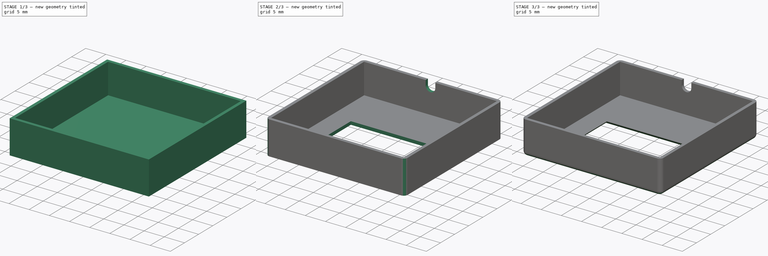
[diagram: build sequence overview — one tinted view per stage of 3, left to right]
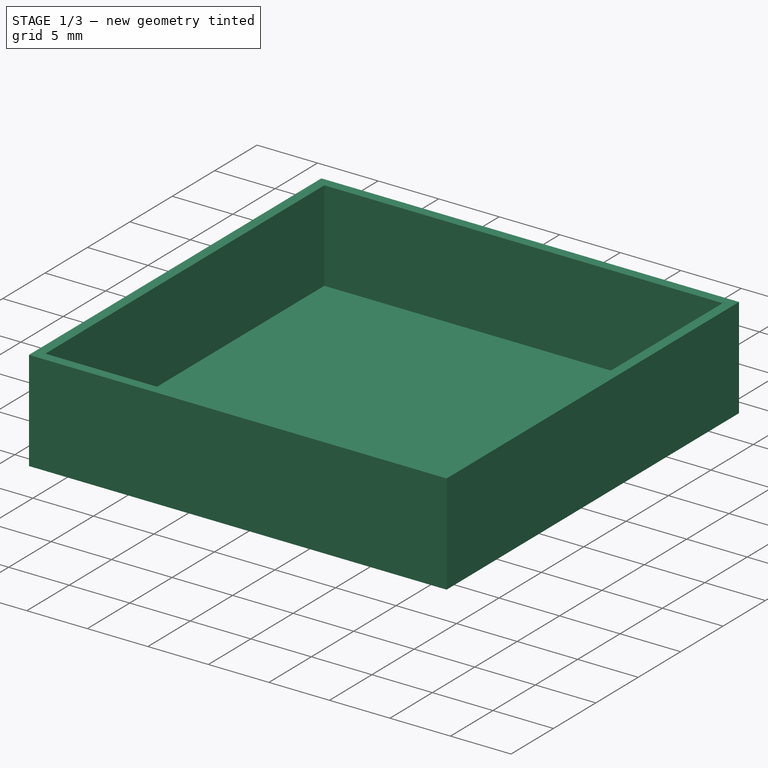
[diagram: stage 1 of 3 — iso view after this stage's code; geometry added in this stage tinted green]
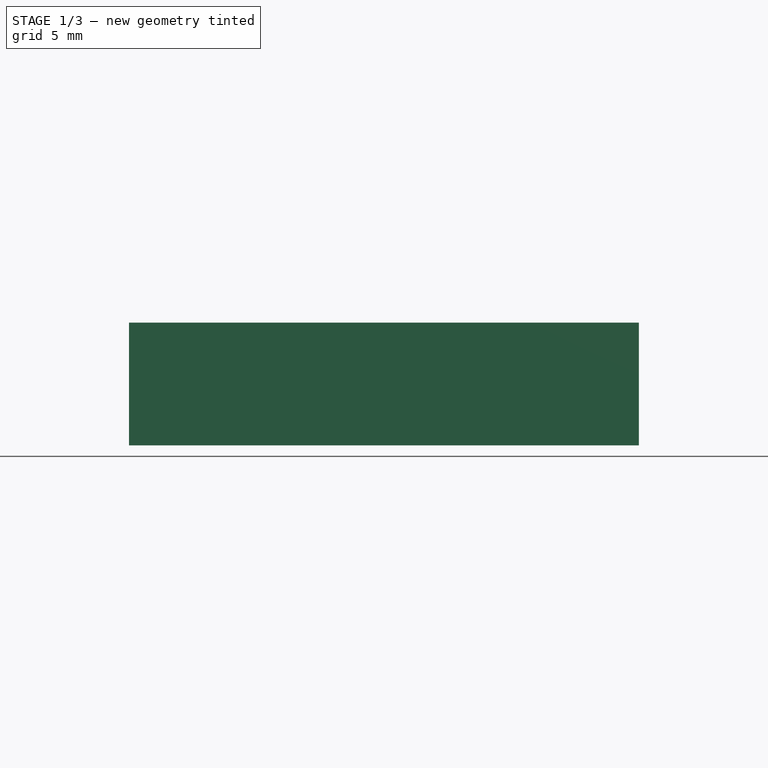
[diagram: stage 1 of 3 — front view after this stage's code; geometry added in this stage tinted green]
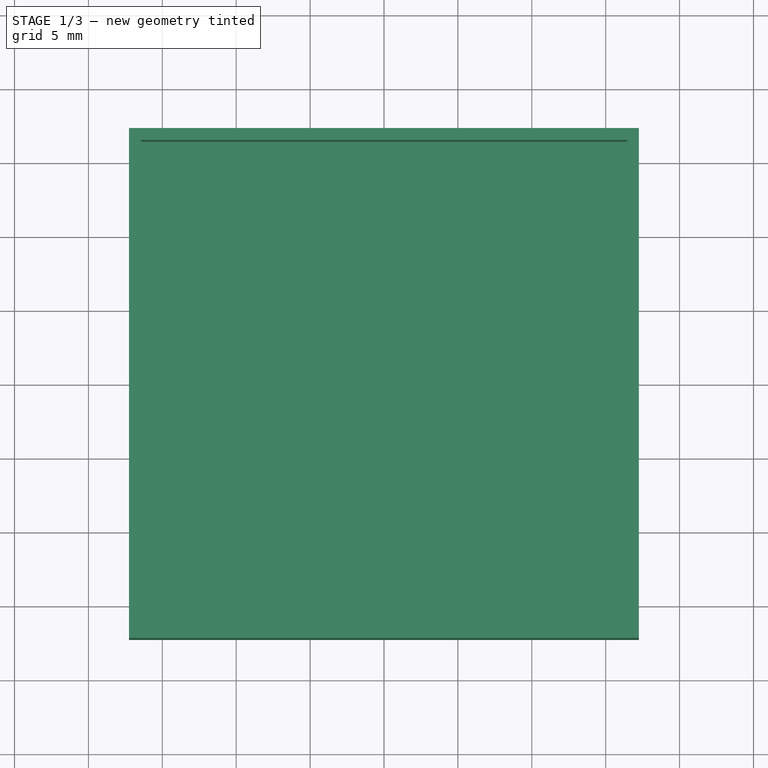
[diagram: stage 1 of 3 — top view after this stage's code; geometry added in this stage tinted green]
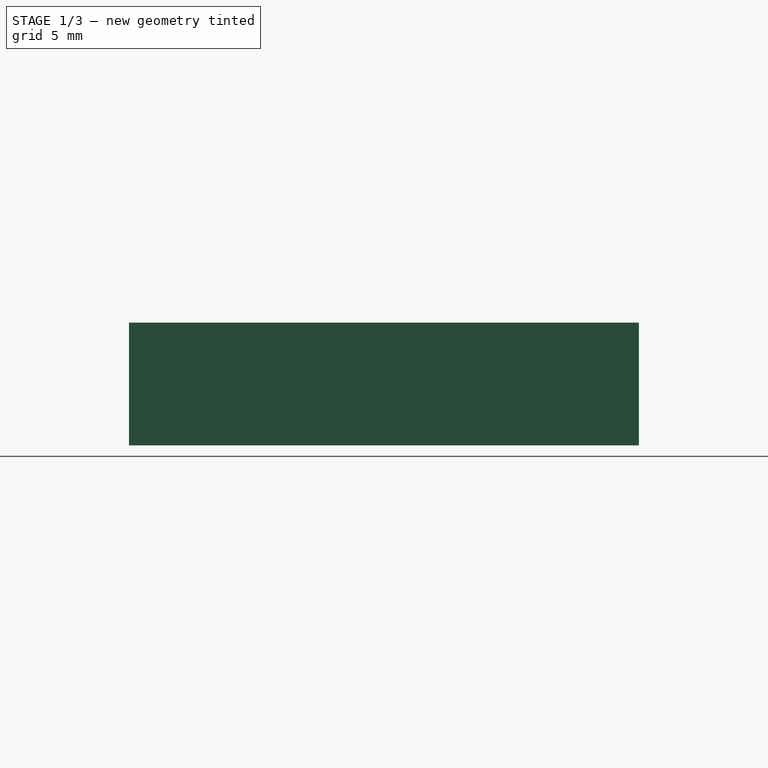
[diagram: stage 1 of 3 — right view after this stage's code; geometry added in this stage tinted green]
FCSTD DOCUMENT  (FreeCAD 0.20R29603 (Git))
Label: 128x64_gornja_soldered
License: All rights reserved
LicenseURL: http://en.wikipedia.org/wiki/All_rights_reserved
objects: Sketcher::SketchObject×4, PartDesign::Pad×2, PartDesign::Pocket×2, PartDesign::Fillet×2, PartDesign::Chamfer×1, PartDesign::Body×1
note: 19 computed .brp shape members not serialized (recipe doc carries the construction recipe); baked Part::Feature solids carry a one-line shape summary decoded from their .brp

FEATURE [Sketcher::SketchObject] Sketch
  FullyConstrained = true
  MapMode = 5
  Support = -> [XY_Plane]
  sketch-geometry (8):
    g0: LineSegment StartX=-16.45 StartY=16.45 StartZ=0 EndX=16.45 EndY=16.45 EndZ=0
    g1: LineSegment StartX=16.45 StartY=16.45 StartZ=0 EndX=16.45 EndY=-16.45 EndZ=0
    g2: LineSegment StartX=16.45 StartY=-16.45 StartZ=0 EndX=-16.45 EndY=-16.45 EndZ=0
    g3: LineSegment StartX=-16.45 StartY=-16.45 StartZ=0 EndX=-16.45 EndY=16.45 EndZ=0
    g4: LineSegment StartX=-17.25 StartY=17.25 StartZ=0 EndX=17.25 EndY=17.25 EndZ=0
    g5: LineSegment StartX=17.25 StartY=17.25 StartZ=0 EndX=17.25 EndY=-17.25 EndZ=0
    g6: LineSegment StartX=17.25 StartY=-17.25 StartZ=0 EndX=-17.25 EndY=-17.25 EndZ=0
    g7: LineSegment StartX=-17.25 StartY=-17.25 StartZ=0 EndX=-17.25 EndY=17.25 EndZ=0
  constraints (22):
    c: Coincident(g0,g1)
    c: Coincident(g1,g2)
    c: Coincident(g2,g3)
    c: Coincident(g3,g0)
    c: Horizontal(g0)
    c: Vertical(g3)
    c: DistanceX(g2,g2) = 32.9
    c: Symmetric(g2,g1,g-2)
    c: Symmetric(g1,g0,g-1)
    c: DistanceY(g1,g1) = 32.9
    c: Coincident(g4,g5)
    c: Coincident(g5,g6)
    c: Coincident(g6,g7)
    c: Coincident(g7,g4)
    c: Horizontal(g4)
    c: Vertical(g7)
    c: Symmetric(g6,g5,g-2)
    c: Symmetric(g5,g4,g-1)
    c: DistanceX(g6,g6) = 34.5
    c: DistanceY(g5,g5) = 34.5
    c: DistanceX(g6,g2) = 0.8
    c: DistanceY(g5,g1) = 0.8
FEATURE [PartDesign::Pad] Pad
  Direction = (0,0,1)
  Length = 7.5
  Length2 = 10
  Profile = -> Sketch
  ReferenceAxis = -> Sketch [N_Axis]
  Type = 0
FEATURE [Sketcher::SketchObject] Sketch001
  FullyConstrained = true
  MapMode = 5
  Placement = pos=(0,0,0) rot=(1,0,0;3.14159rad)
  Support = -> [Pad]
  sketch-geometry (4):
    g0: LineSegment StartX=-17.25 StartY=17.25 StartZ=0 EndX=17.25 EndY=17.25 EndZ=0
    g1: LineSegment StartX=17.25 StartY=17.25 StartZ=0 EndX=17.25 EndY=-17.25 EndZ=0
    g2: LineSegment StartX=17.25 StartY=-17.25 StartZ=0 EndX=-17.25 EndY=-17.25 EndZ=0
    g3: LineSegment StartX=-17.25 StartY=-17.25 StartZ=0 EndX=-17.25 EndY=17.25 EndZ=0
  constraints (10):
    c: Coincident(g0,g1)
    c: Coincident(g1,g2)
    c: Coincident(g2,g3)
    c: Coincident(g3,g0)
    c: Horizontal(g0)
    c: Vertical(g3)
    c: Symmetric(g2,g1,g-2)
    c: Symmetric(g0,g1,g-1)
    c: DistanceY(g1,g1) = 34.5
    c: DistanceX(g2,g2) = 34.5
FEATURE [PartDesign::Pad] Pad001
  BaseFeature = -> Pad
  Direction = (0,0,-1)
  Length = 0.8
  Length2 = 10
  Profile = -> Sketch001
  ReferenceAxis = -> Sketch001 [N_Axis]
  Type = 0
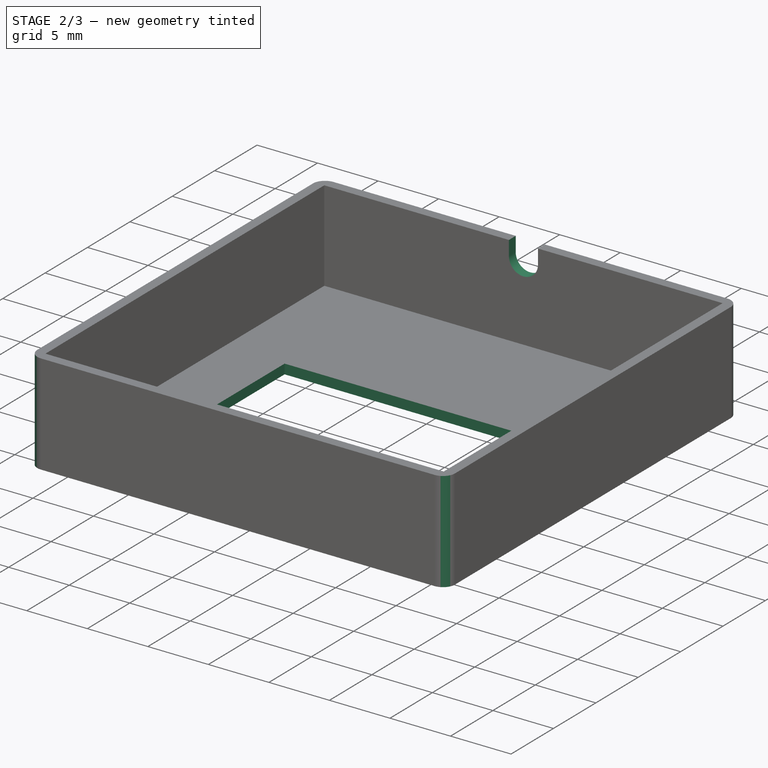
[diagram: stage 2 of 3 — iso view after this stage's code; geometry added in this stage tinted green]
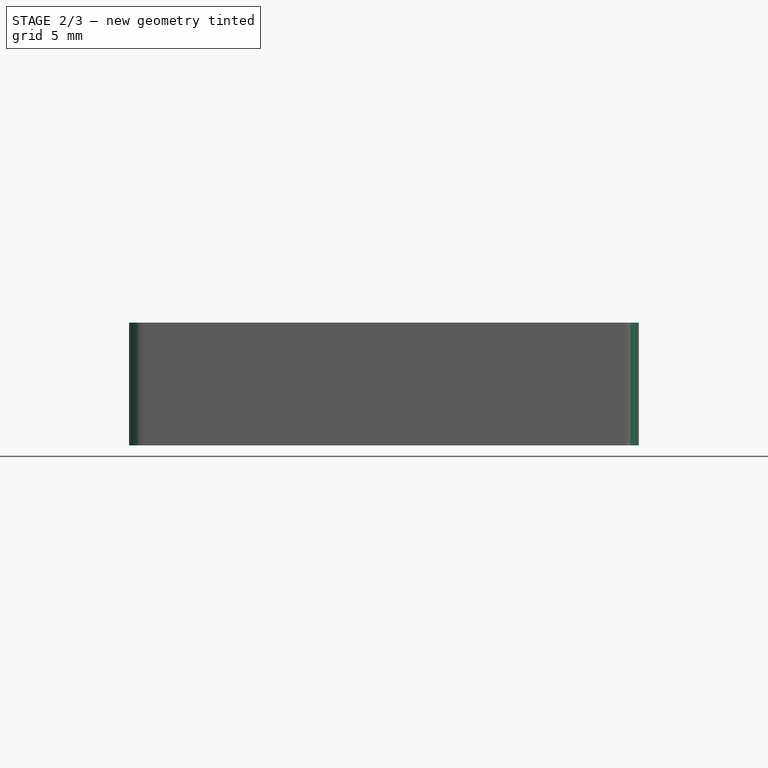
[diagram: stage 2 of 3 — front view after this stage's code; geometry added in this stage tinted green]
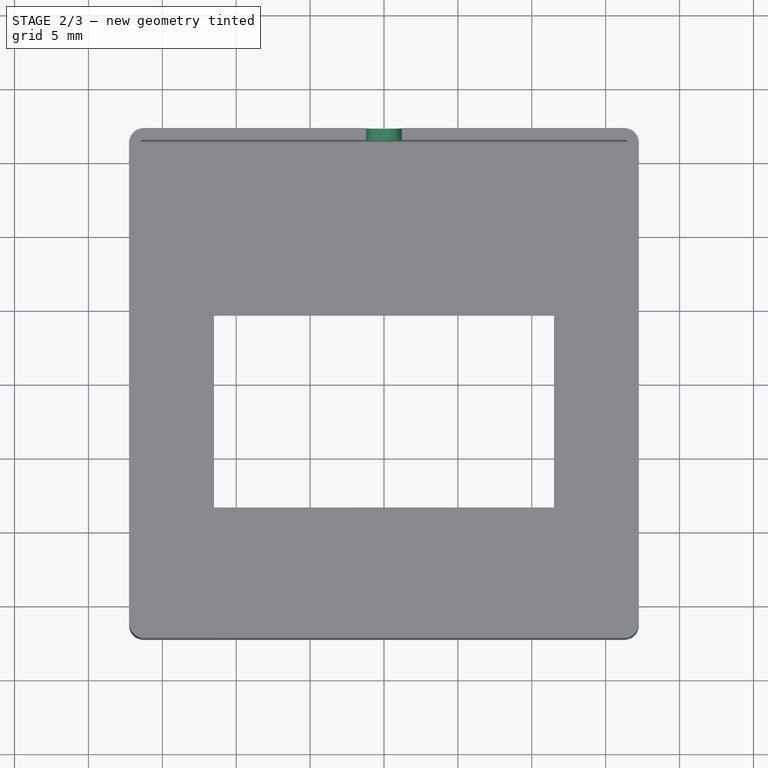
[diagram: stage 2 of 3 — top view after this stage's code; geometry added in this stage tinted green]
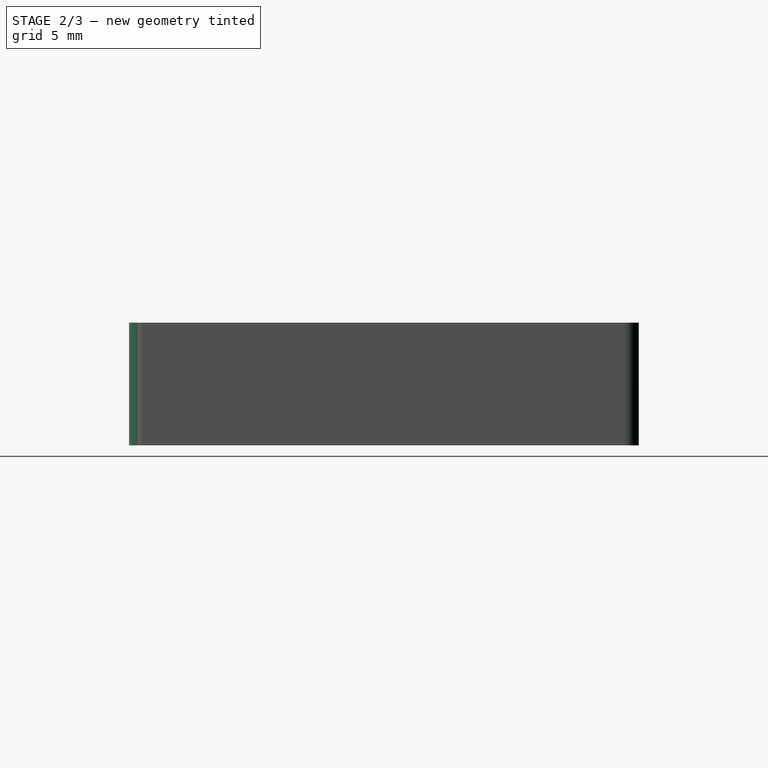
[diagram: stage 2 of 3 — right view after this stage's code; geometry added in this stage tinted green]
FEATURE [Sketcher::SketchObject] Sketch002
  ExternalGeometry = -> [Pad001]
  FullyConstrained = true
  MapMode = 5
  Placement = pos=(0,0,-0.8) rot=(1,0,0;3.14159rad)
  Support = -> [Pad001]
  sketch-geometry (4):
    g0: LineSegment StartX=-11.5 StartY=8.3 StartZ=0 EndX=11.5 EndY=8.3 EndZ=0
    g1: LineSegment StartX=11.5 StartY=8.3 StartZ=0 EndX=11.5 EndY=-4.7 EndZ=0
    g2: LineSegment StartX=11.5 StartY=-4.7 StartZ=0 EndX=-11.5 EndY=-4.7 EndZ=0
    g3: LineSegment StartX=-11.5 StartY=-4.7 StartZ=0 EndX=-11.5 EndY=8.3 EndZ=0
  constraints (12):
    c: Coincident(g0,g1)
    c: Coincident(g1,g2)
    c: Coincident(g2,g3)
    c: Coincident(g3,g0)
    c: Horizontal(g0)
    c: Vertical(g1)
    c: Vertical(g3)
    c: Symmetric(g2,g1,g-2)
    c: DistanceX(g2,g2) = 23
    c: DistanceY(g1,g1) = 13
    c: DistanceY(g-1,g0) = 8.3
    c: DistanceY(g0,g-3) = 8.95
FEATURE [PartDesign::Pocket] Pocket
  BaseFeature = -> Pad001
  Direction = (0,0,1)
  Length = 5
  Length2 = 5
  Profile = -> Sketch002
  ReferenceAxis = -> Sketch002 [N_Axis]
  Type = 0
FEATURE [Sketcher::SketchObject] Sketch003
  FullyConstrained = false
  MapMode = 5
  Placement = pos=(0,17.25,0) rot=(0,0.707107,0.707107;3.14159rad)
  Support = -> [Pocket]
  sketch-geometry (4):
    g0: ArcOfCircle CenterX=0 CenterY=18.8968 CenterZ=0 NormalX=0 NormalY=0 NormalZ=1 AngleXU=0 Radius=1.2 StartAngle=1.157e-13 EndAngle=3.14159
    g1: ArcOfCircle CenterX=0 CenterY=6.3 CenterZ=0 NormalX=0 NormalY=0 NormalZ=1 AngleXU=0 Radius=1.2 StartAngle=3.14159 EndAngle=6.28319
    g2: LineSegment StartX=-1.2 StartY=18.8968 StartZ=0 EndX=-1.2 EndY=6.3 EndZ=0
    g3: LineSegment StartX=1.2 StartY=6.3 StartZ=0 EndX=1.2 EndY=18.8968 EndZ=0
  constraints (9):
    c: Tangent(g0,g2) = -1.5708
    c: Tangent(g2,g1) = -1.5708
    c: Tangent(g1,g3) = -1.5708
    c: Tangent(g3,g0) = -1.5708
    c: Equal(g0,g1)
    c: PointOnObject(g1,g-2)
    c: PointOnObject(g0,g-2)
    c: Diameter(g1) = 2.4
    c: DistanceY(g-1,g1) = 6.3
FEATURE [PartDesign::Pocket] Pocket001
  BaseFeature = -> Pocket
  Direction = (0,-1,2e-16)
  Length = 2
  Length2 = 5
  Profile = -> Sketch003
  ReferenceAxis = -> Sketch003 [N_Axis]
  Type = 0
FEATURE [PartDesign::Fillet] Fillet
  Base = -> Pocket001 [Edge12,Edge2,Edge8,Edge29]
  BaseFeature = -> Pocket001
  Radius = 1
  SupportTransform = false
  UseAllEdges = false
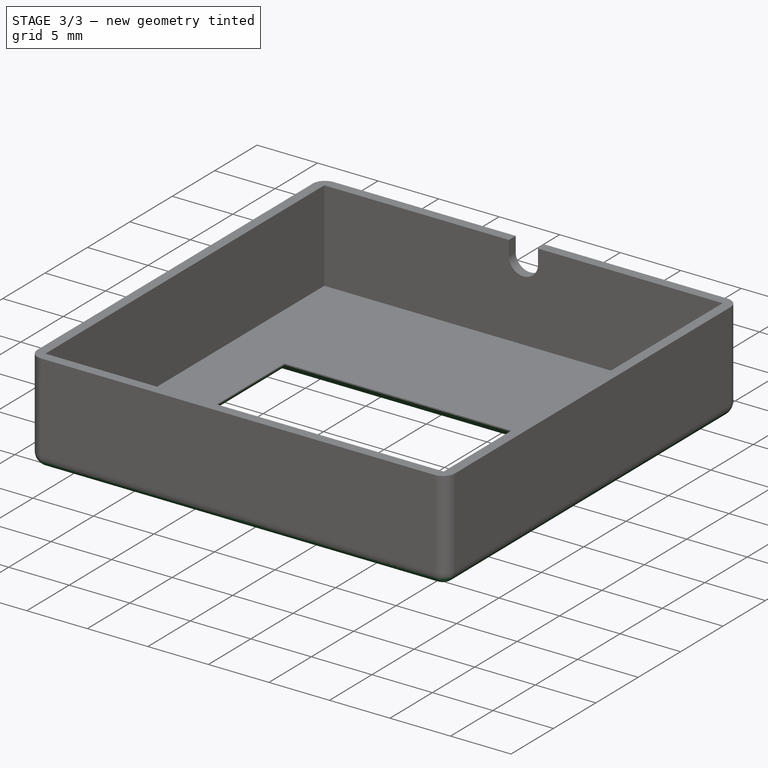
[diagram: stage 3 of 3 — iso view after this stage's code; geometry added in this stage tinted green]
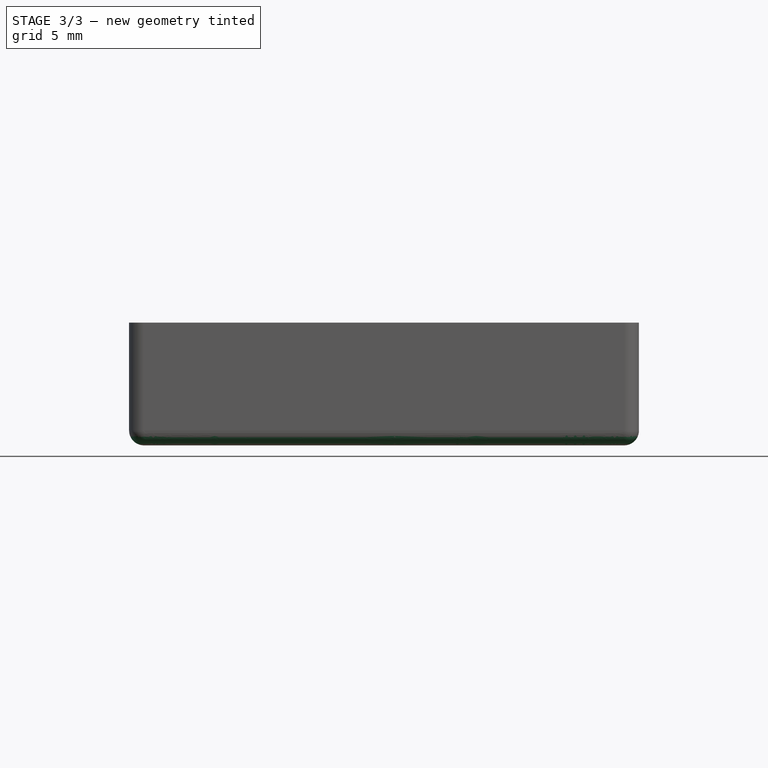
[diagram: stage 3 of 3 — front view after this stage's code; geometry added in this stage tinted green]
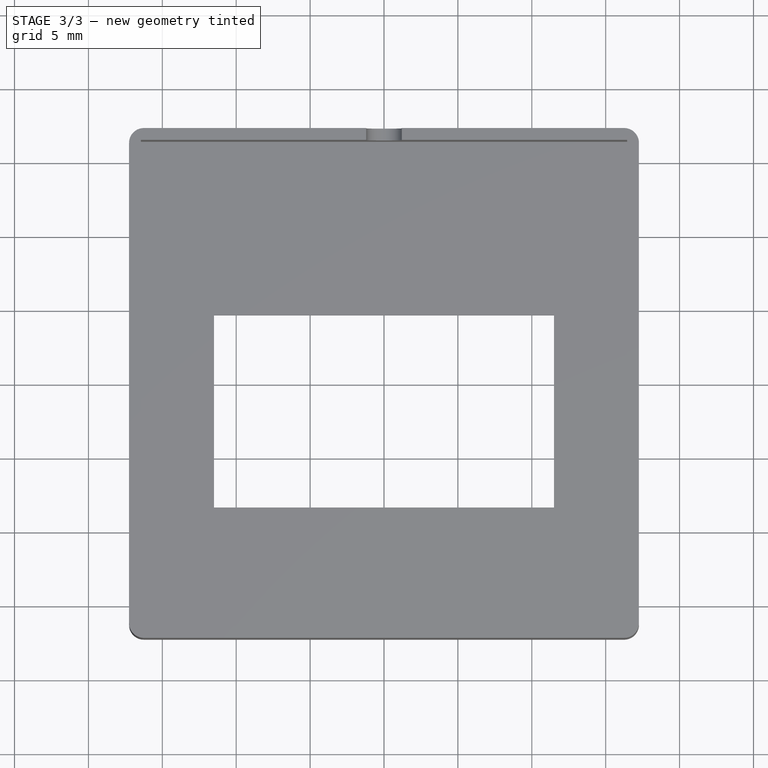
[diagram: stage 3 of 3 — top view after this stage's code; geometry added in this stage tinted green]
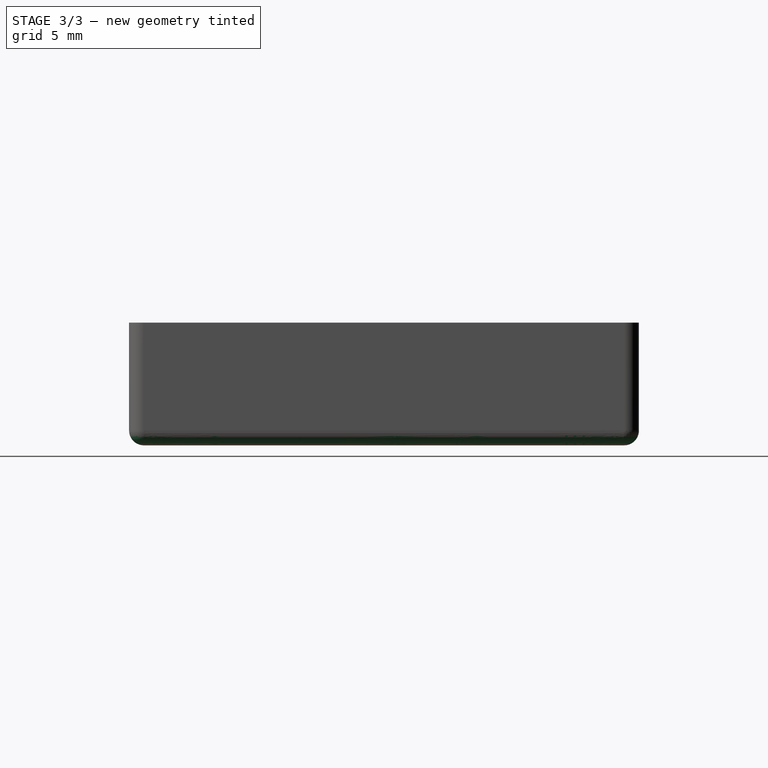
[diagram: stage 3 of 3 — right view after this stage's code; geometry added in this stage tinted green]
FEATURE [PartDesign::Chamfer] Chamfer
  Angle = 15
  Base = -> Fillet [Edge44,Edge45,Edge46,Edge47]
  BaseFeature = -> Fillet
  ChamferType = 0
  FlipDirection = false
  Size = 0.7
  Size2 = 0.1
  SupportTransform = false
  UseAllEdges = false
FEATURE [PartDesign::Fillet] Fillet001
  Base = -> Chamfer [Edge12]
  BaseFeature = -> Chamfer
  Radius = 1.01
  SupportTransform = false
  UseAllEdges = false
FEATURE [PartDesign::Body] Body
  Group = -> [Sketch,Pad,Sketch001,Pad001,Sketch002,Pocket,Sketch003,Pocket001,Fillet,Chamfer,Fillet001]
  Origin = -> Origin
  Tip = -> Fillet001
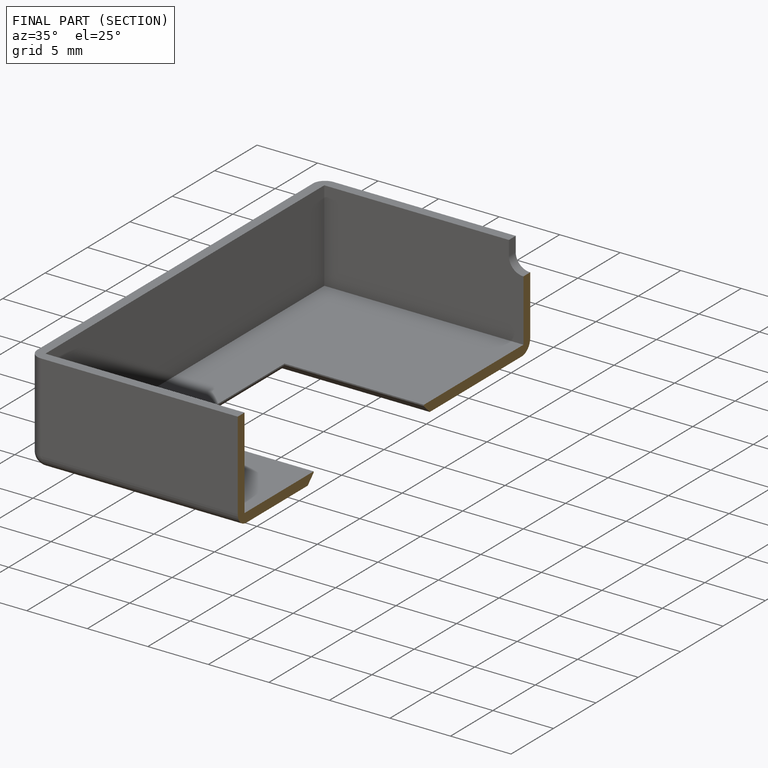
[diagram: finished part — half-section view (interior)]
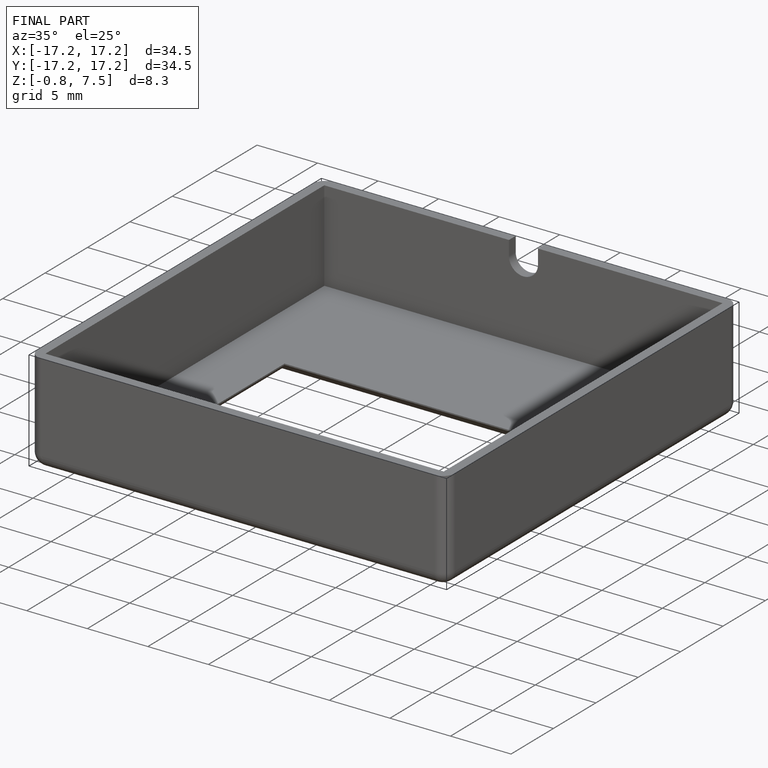
[diagram: finished part — iso view with bounding-box wireframe]
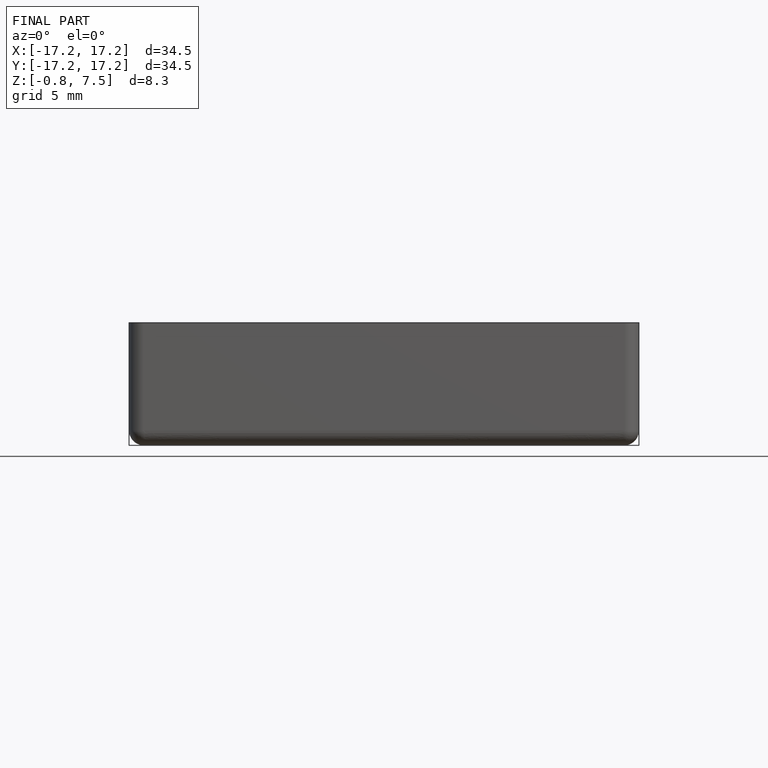
[diagram: finished part — front view with bounding-box wireframe]
